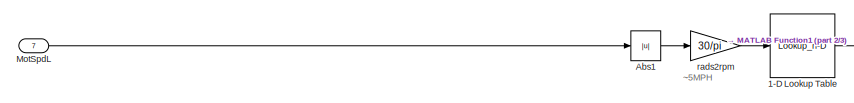
[diagram: root canvas - part 1/3, top left region]
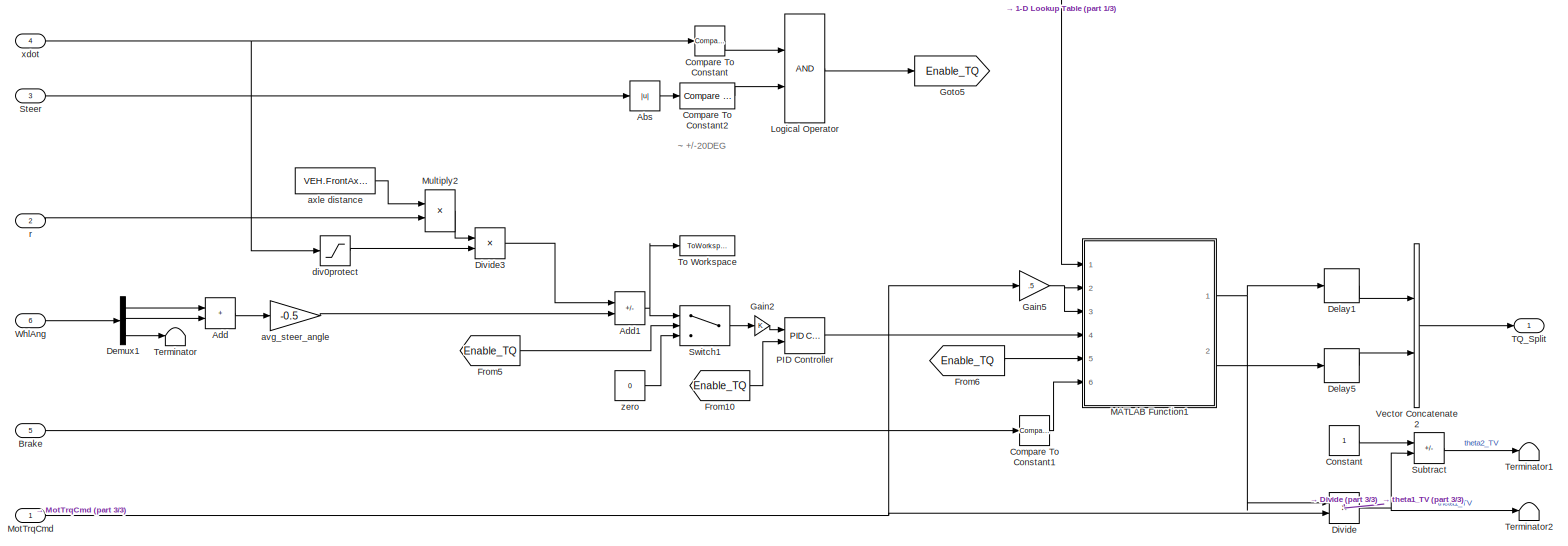
[diagram: root canvas - part 2/3, most of the canvas]
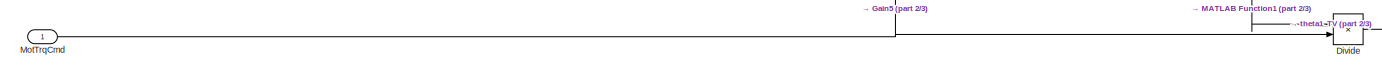
[diagram: root canvas - part 3/3, full width, bottom band]
MODEL slx_7d6e3baf6966
KIND model
CONFIG AbsTol = auto
CONFIG EnableMultiTasking = on
CONFIG FixedStep = 0.01
CONFIG MaxStep = auto
CONFIG MinStep = auto
CONFIG RelTol = 1e-3
CONFIG SampleTimeConstraint = Unconstrained
CONFIG Solver = FixedStepDiscrete
CONFIG SolverName = FixedStepDiscrete
CONFIG StartTime = 0.0
CONFIG StopTime = inf
BLOCK [Lookup_n-D] 1-D Lookup Table
  BreakpointsForDimension1 = w_eff_bp
  ExtrapMethod = Clip
  InternalRulePriority = Speed
  NumberOfTableDimensions = 1
  Ports = [1, 1]
  RndMeth = Simplest
  Table = T_t
  UseLastTableValue = on
BLOCK [Abs] Abs
  SaturateOnIntegerOverflow = off
BLOCK [Abs] Abs1
  SaturateOnIntegerOverflow = off
BLOCK [Sum] Add
  IconShape = rectangular
  Ports = [2, 1]
BLOCK [Sum] Add1
  IconShape = rectangular
  Inputs = +-
  Ports = [2, 1]
BLOCK [Inport] Brake
  Port = 5
BLOCK [Reference] Compare To Constant  REF=simulink/Logic and Bit
Operations/Compare
To Constant
  Ports = [1, 1]
  SourceBlock = simulink/Logic and Bit\nOperations/Compare\nTo Constant
  SourceProductBaseCode = SL
  SourceType = Compare To Constant
BLOCK [Reference] Compare To Constant1  REF=simulink/Logic and Bit
Operations/Compare
To Constant
  Ports = [1, 1]
  SourceBlock = simulink/Logic and Bit\nOperations/Compare\nTo Constant
  SourceProductBaseCode = SL
  SourceType = Compare To Constant
BLOCK [Reference] Compare To Constant2  REF=simulink/Logic and Bit
Operations/Compare
To Constant
  Ports = [1, 1]
  SourceBlock = simulink/Logic and Bit\nOperations/Compare\nTo Constant
  SourceProductBaseCode = SL
  SourceType = Compare To Constant
BLOCK [Constant] Constant
BLOCK [Delay] Delay1
  DelayLength = 1
  InitialCondition = 0
  InputPortMap = u0
  Ports = [1, 1]
BLOCK [Delay] Delay5
  DelayLength = 1
  InitialCondition = 0
  InputPortMap = u0
  Ports = [1, 1]
BLOCK [Demux] Demux1
  Outputs = [1 1 2]
  Ports = [1, 3]
BLOCK [Product] Divide
  Inputs = */
  Ports = [2, 1]
BLOCK [Product] Divide3
  Inputs = */
  Ports = [2, 1]
BLOCK [From] From10
  GotoTag = Enable_TQ
BLOCK [From] From5
  GotoTag = Enable_TQ
BLOCK [From] From6
  GotoTag = Enable_TQ
BLOCK [Gain] Gain2
BLOCK [Gain] Gain5
  Gain = .5
BLOCK [Goto] Goto5
  GotoTag = Enable_TQ
BLOCK [Logic] Logical Operator
  AllPortsSameDT = off
  OutDataTypeStr = boolean
  Ports = [2, 1]
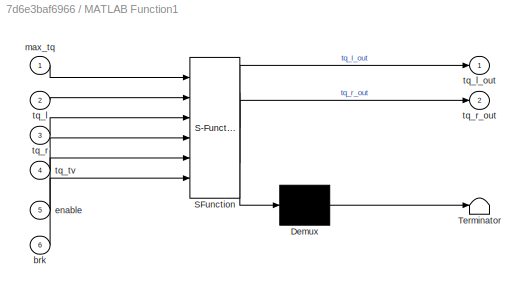
BLOCK [SubSystem] MATLAB Function1
  ErrorFcn = Stateflow.Translate.translate
  PermitHierarchicalResolution = ExplicitOnly
  Ports = [6, 2]
  RequestExecContextInheritance = off
  SFBlockType = MATLAB Function
  TreatAsAtomicUnit = on
BLOCK [Demux] MATLAB Function1/ Demux 
  Outputs = 1
  Ports = [1, 1]
BLOCK [S-Function] MATLAB Function1/ SFunction 
  EnableBusSupport = on
  FunctionName = sf_sfun
  PortCounts = [6 3]
  Ports = [6, 3]
  SFcnIsStateOwnerBlock = off
  SFunctionDeploymentMode = off
  Tag = Stateflow S-Function 4
BLOCK [Terminator] MATLAB Function1/ Terminator 
BLOCK [Inport] MATLAB Function1/brk
  Port = 6
BLOCK [Inport] MATLAB Function1/enable
  Port = 5
BLOCK [Inport] MATLAB Function1/max_tq
BLOCK [Inport] MATLAB Function1/tq_l
  Port = 2
BLOCK [Outport] MATLAB Function1/tq_l_out
  VectorParamsAs1DForOutWhenUnconnected = off
BLOCK [Inport] MATLAB Function1/tq_r
  Port = 3
BLOCK [Outport] MATLAB Function1/tq_r_out
  Port = 2
  VectorParamsAs1DForOutWhenUnconnected = off
BLOCK [Inport] MATLAB Function1/tq_tv
  Port = 4
BLOCK [Inport] MotSpdL
  Port = 7
BLOCK [Inport] MotTrqCmd
BLOCK [Product] Multiply2
  Ports = [2, 1]
BLOCK [Reference] PID Controller  REF=simulink/Continuous/PID Controller
  Ports = [2, 1]
  SourceBlock = simulink/Continuous/PID Controller
  SourceProductBaseCode = SL
  SourceType = PID 1dof
BLOCK [Inport] Steer
  Port = 3
BLOCK [Sum] Subtract
  IconShape = rectangular
  Inputs = +-
  Ports = [2, 1]
BLOCK [Switch] Switch1
  Criteria = u2 > Threshold
  InputSameDT = off
  SaturateOnIntegerOverflow = off
  Threshold = .1
BLOCK [Outport] TQ_Split
  VectorParamsAs1DForOutWhenUnconnected = off
BLOCK [Terminator] Terminator
BLOCK [Terminator] Terminator1
BLOCK [Terminator] Terminator2
BLOCK [ToWorkspace] To Workspace
  Commented = on
  FixptAsFi = on
  MaxDataPoints = inf
  Ports = [1]
  SampleTime = -1
  SaveFormat = Timeseries
  VariableName = delta_alpha
BLOCK [Concatenate] Vector Concatenate2
  Ports = [2, 1]
BLOCK [Inport] WhlAng
  Port = 6
BLOCK [Gain] avg_steer_angle
  Gain = -0.5
BLOCK [Constant] axle distance
  Value = VEH.FrontAxlePositionfromCG + VEH.RearAxlePositionfromCG %1.515+1.504
BLOCK [Saturate] div0protect
  LowerLimit = 0.01
  UpperLimit = inf
  ZeroCross = off
BLOCK [Inport] r
  Port = 2
BLOCK [Gain] rads2rpm
  Gain = 30/pi
BLOCK [Inport] xdot
  Port = 4
BLOCK [Constant] zero
  Value = 0
ANNOTATION (root): ~ +/-20DEG
ANNOTATION (root): ~5MPH
LINE 1-D Lookup Table:1 -> MATLAB Function1:1
LINE Abs1:1 -> rads2rpm:1
LINE Abs:1 -> Compare To Constant2:1
NET Add1:1 -> Switch1:1, To Workspace:1
LINE Add:1 -> avg_steer_angle:1
LINE Brake:1 -> Compare To Constant1:1
LINE Compare To Constant1:1 -> MATLAB Function1:6
LINE Compare To Constant2:1 -> Logical Operator:2
LINE Compare To Constant:1 -> Logical Operator:1
LINE Constant:1 -> Subtract:1
LINE Delay1:1 -> Vector Concatenate2:1
LINE Delay5:1 -> Vector Concatenate2:2
LINE Demux1:1 -> Add:1
LINE Demux1:2 -> Add:2
LINE Demux1:3 -> Terminator:1
LINE Divide3:1 -> Add1:1
NET Divide:1 -> Subtract:2, Terminator2:1
LINE From10:1 -> PID Controller:2
LINE From5:1 -> Switch1:2
LINE From6:1 -> MATLAB Function1:5
LINE Gain2:1 -> PID Controller:1
NET Gain5:1 -> MATLAB Function1:2, MATLAB Function1:3
LINE Logical Operator:1 -> Goto5:1
NET MATLAB Function1:1 -> Delay1:1, Divide:1
LINE MATLAB Function1:2 -> Delay5:1
LINE MotSpdL:1 -> Abs1:1
NET MotTrqCmd:1 -> Divide:2, Gain5:1
LINE Multiply2:1 -> Divide3:1
LINE PID Controller:1 -> MATLAB Function1:4
LINE Steer:1 -> Abs:1
LINE Subtract:1 -> Terminator1:1
LINE Switch1:1 -> Gain2:1
LINE Vector Concatenate2:1 -> TQ_Split:1
LINE WhlAng:1 -> Demux1:1
LINE avg_steer_angle:1 -> Add1:2
LINE axle distance:1 -> Multiply2:1
LINE div0protect:1 -> Divide3:2
LINE r:1 -> Multiply2:2
LINE rads2rpm:1 -> 1-D Lookup Table:1
NET xdot:1 -> Compare To Constant:1, div0protect:1
LINE zero:1 -> Switch1:3
note: NET lines group one-source signal fan-out (src -> all destinations, sorted); 1:1 wires keep LINE
CHART MATLAB Function1 states=1 transitions=1
  STATE_LABEL 'eML_blk_kernel()'
  STATE_LABEL 'SCRIPT:\nfunction [tq_l_out,tq_r_out] = fcn(max_tq,tq_l,tq_r,tq_tv,enable,brk)\n% enable:= flag to turn on TV, true if steering wheel is turned and non-zero vehicle speed\n% brk:= flag to turn on TV, true if not braking\nt_lim=min(max_tq-abs(tq_l),max_tq-abs(tq_r));\ndelta_t=min(100,min(t_lim,abs(tq_tv)))*sign(tq_tv)*enable;% limit difference in torque between tires to +/-50Nm and to max/min motor torq...<+165ch>'
CHART  states=0 transitions=0
